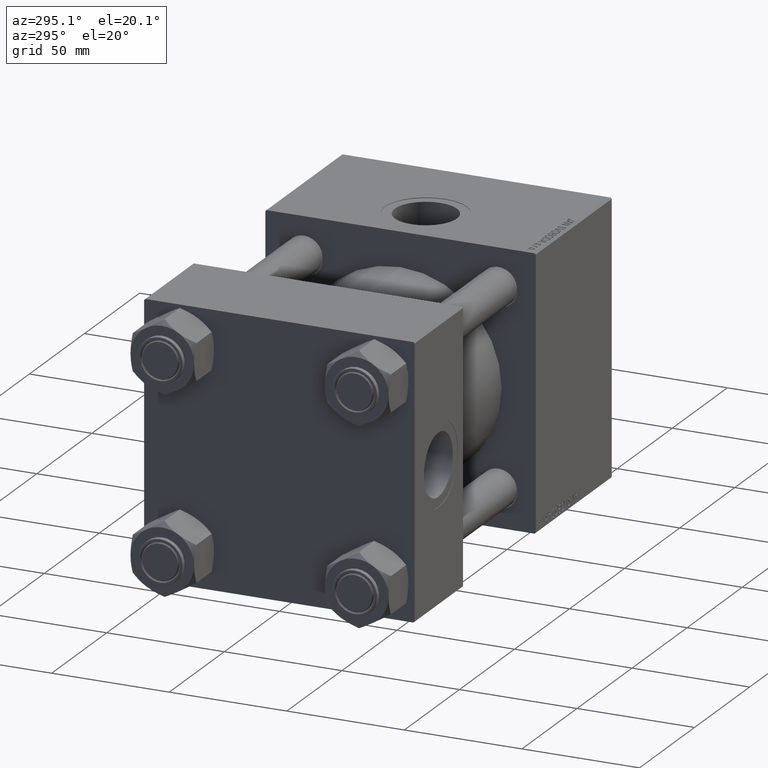
[diagram: clean part render]
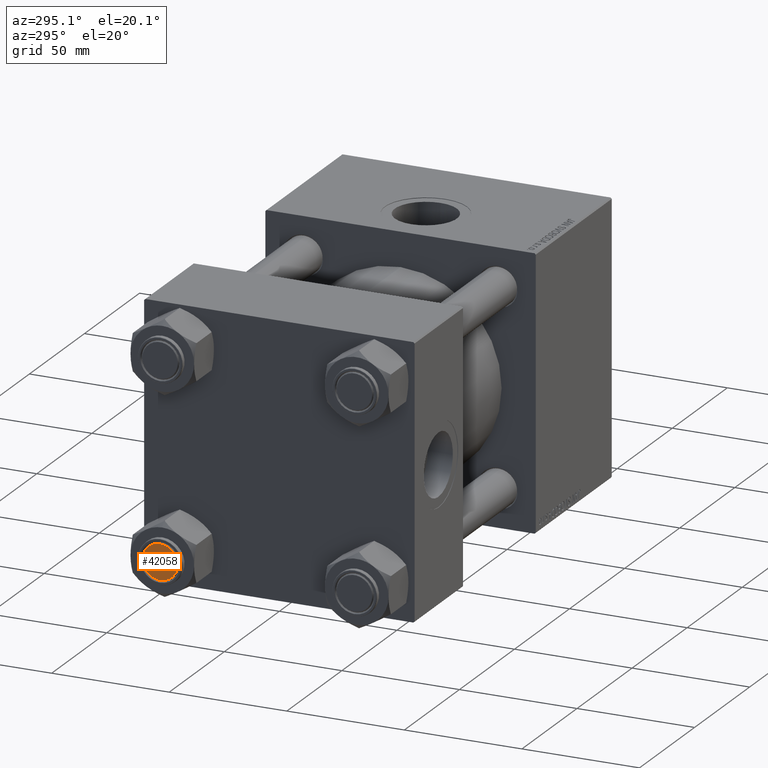
[diagram: same view with one face highlighted and labeled with its STEP entity id]
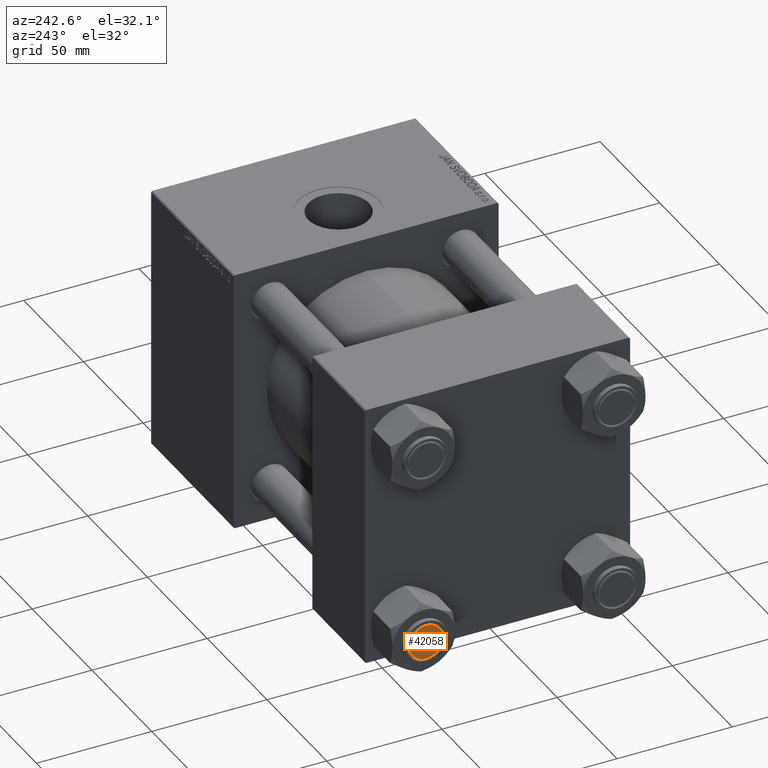
[diagram: same view with one face highlighted and labeled with its STEP entity id]
A machine part, auxiliary view. The second image highlights one B-rep face of the part: STEP entity #42058.
A second angle (auxiliary view) of the same face is appended — the face is thin or edge-on in the first view.
In plain terms, the highlighted planar face has unit normal (-1, 0, -0).
Its self-contained STEP definition (entity closure, byte-faithful):
#616 = CIRCLE ( 'NONE', #2251, 7.499999999999978684 ) ;
#1576 = AXIS2_PLACEMENT_3D ( 'NONE', #21124, #36825, #11116 ) ;
#1831 = FACE_OUTER_BOUND ( 'NONE', #40403, .T. ) ;
#2081 = DIRECTION ( 'NONE',  ( 1.000000000000000000, 0.000000000000000000, -0.000000000000000000 ) ) ;
#2251 = AXIS2_PLACEMENT_3D ( 'NONE', #41953, #46570, #34765 ) ;
#4663 = VERTEX_POINT ( 'NONE', #27077 ) ;
#5236 = CARTESIAN_POINT ( 'NONE',  ( 7.499999999999978684, 9.491012693391973982E-16, 143.0000000000000000 ) ) ;
#11116 = DIRECTION ( 'NONE',  ( 1.000000000000000000, 0.000000000000000000, 0.000000000000000000 ) ) ;
#14659 = CIRCLE ( 'NONE', #1576, 7.499999999999978684 ) ;
#21124 = CARTESIAN_POINT ( 'NONE',  ( 0.000000000000000000, 0.000000000000000000, 143.0000000000000000 ) ) ;
#24956 = ORIENTED_EDGE ( 'NONE', *, *, #39249, .T. ) ;
#25820 = ORIENTED_EDGE ( 'NONE', *, *, #35385, .T. ) ;
#27077 = CARTESIAN_POINT ( 'NONE',  ( -7.499999999999978684, 0.000000000000000000, 143.0000000000000000 ) ) ;
#29051 = CARTESIAN_POINT ( 'NONE',  ( 0.000000000000000000, 0.000000000000000000, 143.0000000000000000 ) ) ;
#33421 = PLANE ( 'NONE',  #37737 ) ;
#34765 = DIRECTION ( 'NONE',  ( 1.000000000000000000, 0.000000000000000000, 0.000000000000000000 ) ) ;
#35385 = EDGE_CURVE ( 'NONE', #4663, #49826, #616, .T. ) ;
#36825 = DIRECTION ( 'NONE',  ( 0.000000000000000000, 0.000000000000000000, 1.000000000000000000 ) ) ;
#37737 = AXIS2_PLACEMENT_3D ( 'NONE', #29051, #49089, #2081 ) ;
#39249 = EDGE_CURVE ( 'NONE', #49826, #4663, #14659, .T. ) ;
#40403 = EDGE_LOOP ( 'NONE', ( #25820, #24956 ) ) ;
#41953 = CARTESIAN_POINT ( 'NONE',  ( 0.000000000000000000, 0.000000000000000000, 143.0000000000000000 ) ) ;
#42058 = ADVANCED_FACE ( 'NONE', ( #1831 ), #33421, .T. ) ;
#46570 = DIRECTION ( 'NONE',  ( 0.000000000000000000, 0.000000000000000000, 1.000000000000000000 ) ) ;
#49089 = DIRECTION ( 'NONE',  ( 0.000000000000000000, 0.000000000000000000, 1.000000000000000000 ) ) ;
#49826 = VERTEX_POINT ( 'NONE', #5236 ) ;